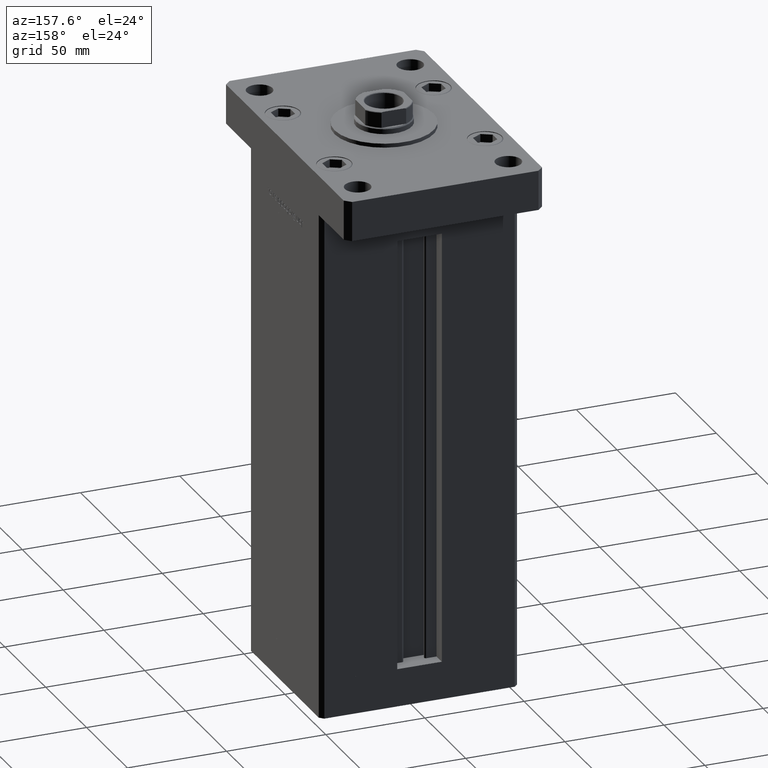
[diagram: clean part render]
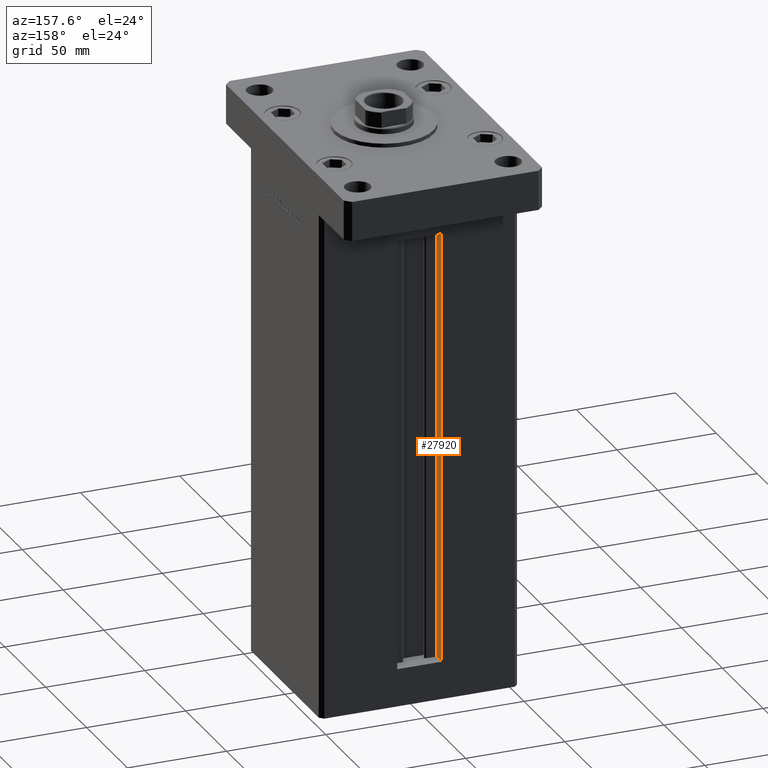
[diagram: same view with one face highlighted and labeled with its STEP entity id]
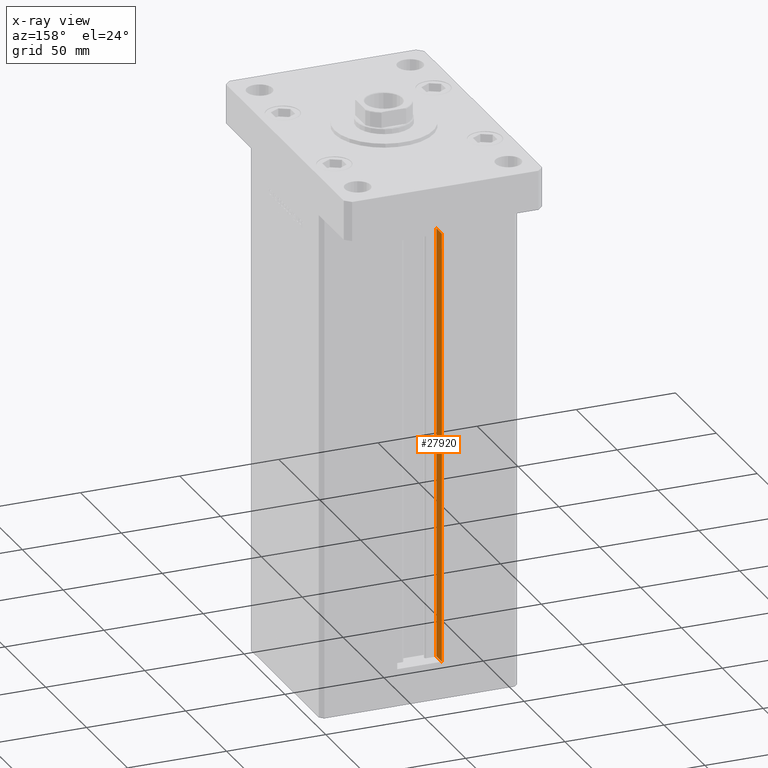
[diagram: x-ray of the same camera — body ghosted, the highlighted face saturated]
A machine part, auxiliary view. The second image highlights one B-rep face of the part: STEP entity #27920.
The next image is the same camera in x-ray: the body ghosted, the highlighted face saturated — about 0% of this face is hidden behind the body in this view.
In plain terms, the highlighted planar face has unit normal (-1, 0, 0).
Its self-contained STEP definition (entity closure, byte-faithful):
#1108 = AXIS2_PLACEMENT_3D ( 'NONE', #16221, #4498, #50285 ) ;
#1986 = DIRECTION ( 'NONE',  ( -0.000000000000000000, -0.000000000000000000, 1.000000000000000000 ) ) ;
#3062 = EDGE_CURVE ( 'NONE', #53752, #6615, #30615, .T. ) ;
#3688 = PLANE ( 'NONE',  #1108 ) ;
#4498 = DIRECTION ( 'NONE',  ( -1.000000000000000000, 0.000000000000000000, 0.000000000000000000 ) ) ;
#4998 = CARTESIAN_POINT ( 'NONE',  ( -11.24999999999999822, 36.99999999999999289, 0.000000000000000000 ) ) ;
#5797 = LINE ( 'NONE', #47496, #8695 ) ;
#6615 = VERTEX_POINT ( 'NONE', #14686 ) ;
#8695 = VECTOR ( 'NONE', #23210, 1000.000000000000000 ) ;
#14686 = CARTESIAN_POINT ( 'NONE',  ( -11.24999999999999822, 36.99999999999999289, 218.5000000000000000 ) ) ;
#16221 = CARTESIAN_POINT ( 'NONE',  ( -11.24999999999999822, 36.99999999999999289, 0.000000000000000000 ) ) ;
#17031 = FACE_OUTER_BOUND ( 'NONE', #53863, .T. ) ;
#17319 = EDGE_CURVE ( 'NONE', #30581, #53752, #37263, .T. ) ;
#17842 = VECTOR ( 'NONE', #29125, 1000.000000000000000 ) ;
#18917 = CARTESIAN_POINT ( 'NONE',  ( -11.24999999999999822, 43.50000000000000000, 218.5000000000000000 ) ) ;
#19418 = ORIENTED_EDGE ( 'NONE', *, *, #34340, .F. ) ;
#23210 = DIRECTION ( 'NONE',  ( -0.000000000000000000, -0.000000000000000000, 1.000000000000000000 ) ) ;
#24447 = VECTOR ( 'NONE', #24981, 1000.000000000000000 ) ;
#24714 = CARTESIAN_POINT ( 'NONE',  ( -11.24999999999999822, 36.99999999999999289, 0.000000000000000000 ) ) ;
#24762 = CARTESIAN_POINT ( 'NONE',  ( -11.24999999999999822, 0.000000000000000000, 218.5000000000000000 ) ) ;
#24981 = DIRECTION ( 'NONE',  ( -0.000000000000000000, -1.000000000000000000, -0.000000000000000000 ) ) ;
#27511 = CARTESIAN_POINT ( 'NONE',  ( -11.24999999999999822, 36.99999999999999289, 0.000000000000000000 ) ) ;
#27920 = ADVANCED_FACE ( 'NONE', ( #17031 ), #3688, .F. ) ;
#29125 = DIRECTION ( 'NONE',  ( 0.000000000000000000, 1.000000000000000000, 0.000000000000000000 ) ) ;
#30581 = VERTEX_POINT ( 'NONE', #53685 ) ;
#30615 = LINE ( 'NONE', #4998, #35523 ) ;
#34340 = EDGE_CURVE ( 'NONE', #6615, #40256, #45498, .T. ) ;
#35523 = VECTOR ( 'NONE', #1986, 1000.000000000000000 ) ;
#37263 = LINE ( 'NONE', #24714, #24447 ) ;
#40256 = VERTEX_POINT ( 'NONE', #18917 ) ;
#43452 = ORIENTED_EDGE ( 'NONE', *, *, #3062, .F. ) ;
#45498 = LINE ( 'NONE', #24762, #17842 ) ;
#47013 = ORIENTED_EDGE ( 'NONE', *, *, #53290, .T. ) ;
#47496 = CARTESIAN_POINT ( 'NONE',  ( -11.24999999999999822, 43.50000000000000000, 0.000000000000000000 ) ) ;
#50034 = ORIENTED_EDGE ( 'NONE', *, *, #17319, .F. ) ;
#50285 = DIRECTION ( 'NONE',  ( 0.000000000000000000, 0.000000000000000000, 1.000000000000000000 ) ) ;
#53290 = EDGE_CURVE ( 'NONE', #30581, #40256, #5797, .T. ) ;
#53685 = CARTESIAN_POINT ( 'NONE',  ( -11.24999999999999822, 43.50000000000000000, 0.000000000000000000 ) ) ;
#53752 = VERTEX_POINT ( 'NONE', #27511 ) ;
#53863 = EDGE_LOOP ( 'NONE', ( #43452, #50034, #47013, #19418 ) ) ;